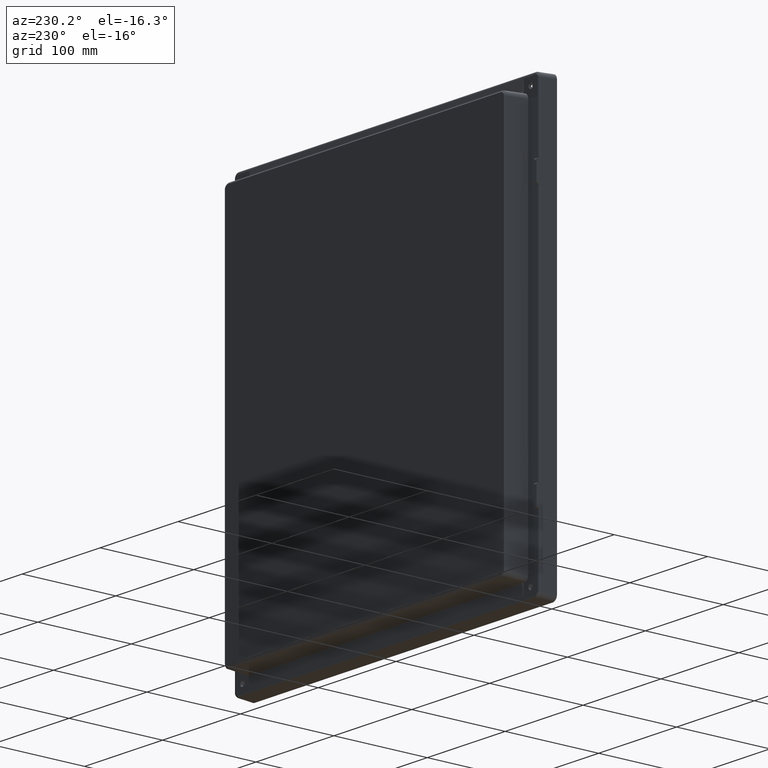
[diagram: clean part render]
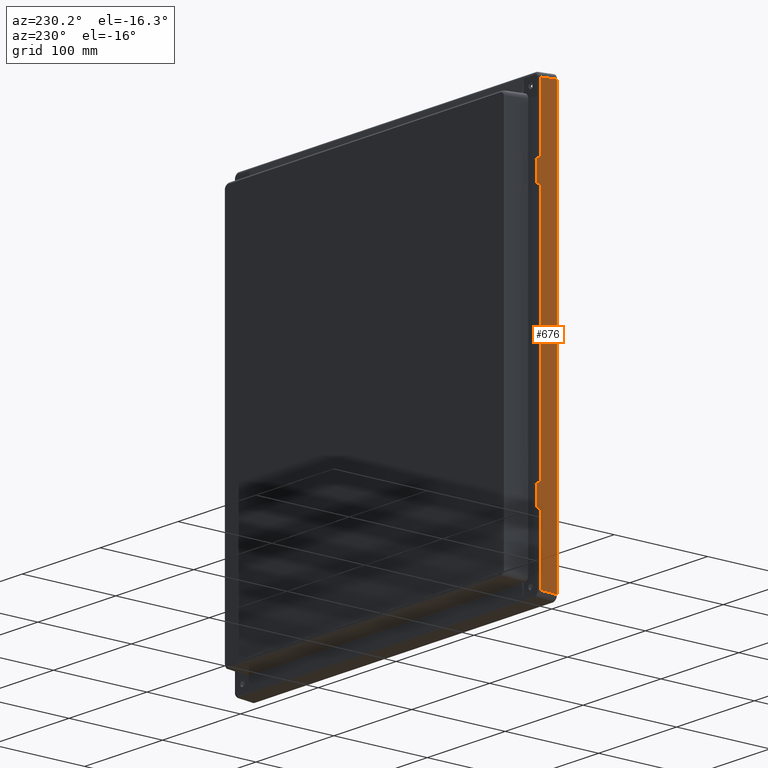
[diagram: same view with one face highlighted and labeled with its STEP entity id]
A machine part, auxiliary view. The second image highlights one B-rep face of the part: STEP entity #676.
In plain terms, the highlighted planar face has unit normal (-0.9986, 0.0523, 0).
Its self-contained STEP definition (entity closure, byte-faithful):
#283 = CARTESIAN_POINT ( 'NONE',  ( -195.9174660559426700, 11.11540981180252200, -150.1493299360794000 ) ) ;
#639 = EDGE_CURVE ( 'NONE', #6872, #7379, #3744, .T. ) ;
#676 = ADVANCED_FACE ( 'NONE', ( #17829 ), #10063, .T. ) ;
#683 = LINE ( 'NONE', #17141, #18834 ) ;
#807 =( BOUNDED_CURVE ( )  B_SPLINE_CURVE ( 3, ( #28261, #30621, #4347, #4646 ),
 .UNSPECIFIED., .F., .F. ) 
 B_SPLINE_CURVE_WITH_KNOTS ( ( 4, 4 ),
 ( 4.764748857944519900, 6.283185307179586200 ),
 .UNSPECIFIED. ) 
 CURVE ( )  GEOMETRIC_REPRESENTATION_ITEM ( )  RATIONAL_B_SPLINE_CURVE ( ( 1.000000000000000000, 0.8169162473415251300, 0.8169162473415251300, 1.000000000000000000 ) ) 
 REPRESENTATION_ITEM ( '' )  );
#1186 = DIRECTION ( 'NONE',  ( -0.0000000000000000000, 0.0000000000000000000, -1.000000000000000000 ) ) ;
#1437 = EDGE_LOOP ( 'NONE', ( #2750, #22761, #6478, #22521, #18314, #17589, #27611, #25877, #7066, #21985, #22751, #4631, #15331, #24811, #6509, #21023 ) ) ;
#1906 = CARTESIAN_POINT ( 'NONE',  ( -195.2816990115010500, 23.24656768834581300, -219.0392365703506200 ) ) ;
#2025 = CARTESIAN_POINT ( 'NONE',  ( -195.9174660559426700, 11.11540981180251800, 127.8506700639206500 ) ) ;
#2042 = VECTOR ( 'NONE', #7841, 1000.000000000000000 ) ;
#2063 = CARTESIAN_POINT ( 'NONE',  ( -196.0661132971653700, 8.279051483778985700, -219.7334597660193400 ) ) ;
#2067 = CARTESIAN_POINT ( 'NONE',  ( -195.8580950073978800, 12.24827690437989100, 150.0905304445846300 ) ) ;
#2377 = VECTOR ( 'NONE', #27037, 1000.000000000000000 ) ;
#2750 = ORIENTED_EDGE ( 'NONE', *, *, #639, .T. ) ;
#2805 = CARTESIAN_POINT ( 'NONE',  ( -195.8171705889751300, 13.02916132616916100, -129.8479291334297700 ) ) ;
#2952 = DIRECTION ( 'NONE',  ( 0.05226579549633288100, 0.9972907879583750000, -0.05176263975590004300 ) ) ;
#2980 = LINE ( 'NONE', #3151, #21855 ) ;
#3041 = VECTOR ( 'NONE', #16223, 1000.000000000000100 ) ;
#3151 = CARTESIAN_POINT ( 'NONE',  ( -196.0661132971653700, 8.279051483778985700, -219.7334597660193400 ) ) ;
#3572 = CARTESIAN_POINT ( 'NONE',  ( -196.0661132971653400, 8.279051483778983900, -219.8236508560148900 ) ) ;
#3744 = LINE ( 'NONE', #7093, #24884 ) ;
#4347 = CARTESIAN_POINT ( 'NONE',  ( -195.8171705889752700, 13.02916132616915800, -128.7244282801760800 ) ) ;
#4631 = ORIENTED_EDGE ( 'NONE', *, *, #16015, .T. ) ;
#4646 = CARTESIAN_POINT ( 'NONE',  ( -195.8171705889751300, 13.02916132616916100, -129.8479291334297700 ) ) ;
#4735 = CARTESIAN_POINT ( 'NONE',  ( -195.8171705889751300, 13.02916132616916100, -148.1520708665702600 ) ) ;
#4973 = EDGE_CURVE ( 'NONE', #25694, #16117, #22399, .T. ) ;
#5088 = VERTEX_POINT ( 'NONE', #19042 ) ;
#5093 = CARTESIAN_POINT ( 'NONE',  ( -196.5000000000001700, 0.0000000000000000000, 225.7499999999998900 ) ) ;
#6023 = CARTESIAN_POINT ( 'NONE',  ( -196.2335808065772400, 5.083581045937458000, 127.5375985072125800 ) ) ;
#6189 = VECTOR ( 'NONE', #25797, 1000.000000000000000 ) ;
#6284 = VERTEX_POINT ( 'NONE', #28810 ) ;
#6304 = EDGE_CURVE ( 'NONE', #24012, #29767, #683, .T. ) ;
#6478 = ORIENTED_EDGE ( 'NONE', *, *, #20505, .F. ) ;
#6490 = CARTESIAN_POINT ( 'NONE',  ( -195.8171705889751300, 13.02916132616916100, 129.8479291334297700 ) ) ;
#6509 = ORIENTED_EDGE ( 'NONE', *, *, #6304, .T. ) ;
#6803 = CARTESIAN_POINT ( 'NONE',  ( -195.8171705889752200, 13.02916132616916100, 128.7244282801760800 ) ) ;
#6872 = VERTEX_POINT ( 'NONE', #2805 ) ;
#7066 = ORIENTED_EDGE ( 'NONE', *, *, #13515, .T. ) ;
#7093 = CARTESIAN_POINT ( 'NONE',  ( -195.8171705889751300, 13.02916132616916100, -127.9500000000000000 ) ) ;
#7379 = VERTEX_POINT ( 'NONE', #4735 ) ;
#7841 = DIRECTION ( 'NONE',  ( -0.0000000000000000000, 0.0000000000000000000, -1.000000000000000000 ) ) ;
#8256 = CARTESIAN_POINT ( 'NONE',  ( -196.7029704034321200, -3.872906011448312000, 150.9272723395130500 ) ) ;
#8409 = AXIS2_PLACEMENT_3D ( 'NONE', #5093, #14633, #14538 ) ;
#8433 = CARTESIAN_POINT ( 'NONE',  ( -196.9192622342645200, -7.999999999999996400, -220.6767997931140400 ) ) ;
#9003 = CARTESIAN_POINT ( 'NONE',  ( -195.9174660559426700, 11.11540981180252400, -127.8506700639206200 ) ) ;
#9437 = EDGE_CURVE ( 'NONE', #20645, #14063, #16514, .T. ) ;
#9772 = EDGE_CURVE ( 'NONE', #27829, #16117, #24279, .T. ) ;
#9951 = EDGE_CURVE ( 'NONE', #7379, #18595, #23758, .T. ) ;
#10063 = PLANE ( 'NONE',  #8409 ) ;
#10237 = CARTESIAN_POINT ( 'NONE',  ( -195.8171705889751300, 13.02916132616916100, 127.9500000000000000 ) ) ;
#10511 = CARTESIAN_POINT ( 'NONE',  ( -195.8171705889752200, 13.02916132616915900, -149.2755717198239700 ) ) ;
#11636 = EDGE_CURVE ( 'NONE', #26276, #15305, #2980, .T. ) ;
#11967 = DIRECTION ( 'NONE',  ( 0.05226579549633288100, 0.9972907879583750000, 0.05176263975590004300 ) ) ;
#12483 = LINE ( 'NONE', #2063, #6189 ) ;
#12981 = CARTESIAN_POINT ( 'NONE',  ( -195.9174660559426700, 11.11540981180252200, 150.1493299360794000 ) ) ;
#12994 = VERTEX_POINT ( 'NONE', #8433 ) ;
#13142 = DIRECTION ( 'NONE',  ( 0.05226579549633288100, 0.9972907879583750000, -0.05176263975590004300 ) ) ;
#13414 = CARTESIAN_POINT ( 'NONE',  ( -195.9174660559426700, 11.11540981180252200, -150.1493299360794000 ) ) ;
#13515 = EDGE_CURVE ( 'NONE', #6284, #25694, #16284, .T. ) ;
#13676 = LINE ( 'NONE', #26857, #26629 ) ;
#13810 = CARTESIAN_POINT ( 'NONE',  ( -196.0661132971653700, 8.279051483778982100, 219.8236508560149200 ) ) ;
#13882 = CARTESIAN_POINT ( 'NONE',  ( -195.8171705889752200, 13.02916132616915900, 149.2755717198239700 ) ) ;
#14063 = VERTEX_POINT ( 'NONE', #2025 ) ;
#14343 = DIRECTION ( 'NONE',  ( -0.0000000000000000000, -0.0000000000000000000, -1.000000000000000000 ) ) ;
#14381 = CARTESIAN_POINT ( 'NONE',  ( -195.8580950073978800, 12.24827690437989100, -150.0905304445846300 ) ) ;
#14538 = DIRECTION ( 'NONE',  ( -0.05233595624294396000, -0.9986295347545739400, 0.0000000000000000000 ) ) ;
#14633 = DIRECTION ( 'NONE',  ( -0.9986295347545739400, 0.05233595624294396000, 0.0000000000000000000 ) ) ;
#15305 = VERTEX_POINT ( 'NONE', #3572 ) ;
#15331 = ORIENTED_EDGE ( 'NONE', *, *, #9437, .F. ) ;
#15704 = LINE ( 'NONE', #24652, #19758 ) ;
#16015 = EDGE_CURVE ( 'NONE', #27829, #14063, #22078, .T. ) ;
#16117 = VERTEX_POINT ( 'NONE', #19434 ) ;
#16159 = CARTESIAN_POINT ( 'NONE',  ( -195.8171705889751300, 13.02916132616916100, 129.8479291334297700 ) ) ;
#16223 = DIRECTION ( 'NONE',  ( -0.05226442768871403200, -0.9972646886342372300, -0.05226442768871403200 ) ) ;
#16264 = CARTESIAN_POINT ( 'NONE',  ( -195.9174660559426700, 11.11540981180251800, 127.8506700639206500 ) ) ;
#16284 = LINE ( 'NONE', #8256, #22174 ) ;
#16514 = LINE ( 'NONE', #6023, #26140 ) ;
#17141 = CARTESIAN_POINT ( 'NONE',  ( -195.8171705889751600, 13.02916132616916300, -127.9500000000000000 ) ) ;
#17589 = ORIENTED_EDGE ( 'NONE', *, *, #27687, .F. ) ;
#17829 = FACE_OUTER_BOUND ( 'NONE', #1437, .T. ) ;
#17830 = CARTESIAN_POINT ( 'NONE',  ( -196.0661132971653700, 8.279051483778985700, -150.2965461704263500 ) ) ;
#18314 = ORIENTED_EDGE ( 'NONE', *, *, #28393, .T. ) ;
#18548 = CARTESIAN_POINT ( 'NONE',  ( -195.8171705889751300, 13.02916132616916100, 148.1520708665702600 ) ) ;
#18595 = VERTEX_POINT ( 'NONE', #13414 ) ;
#18834 = VECTOR ( 'NONE', #2952, 1000.000000000000100 ) ;
#18950 = EDGE_CURVE ( 'NONE', #5088, #28375, #13676, .T. ) ;
#19042 = CARTESIAN_POINT ( 'NONE',  ( -196.9192622342645200, -7.999999999999996400, 220.6767997931140400 ) ) ;
#19434 = CARTESIAN_POINT ( 'NONE',  ( -195.8171705889751300, 13.02916132616916100, 148.1520708665702600 ) ) ;
#19628 = CARTESIAN_POINT ( 'NONE',  ( -196.0661132971653700, 8.279051483778985700, 127.7034538295736600 ) ) ;
#19758 = VECTOR ( 'NONE', #26597, 1000.000000000000000 ) ;
#20425 = DIRECTION ( 'NONE',  ( 0.05226579549633288100, 0.9972907879583750000, 0.05176263975590004300 ) ) ;
#20505 = EDGE_CURVE ( 'NONE', #26276, #18595, #24017, .T. ) ;
#20645 = VERTEX_POINT ( 'NONE', #19628 ) ;
#20786 = EDGE_CURVE ( 'NONE', #20645, #24012, #12483, .T. ) ;
#20800 = EDGE_CURVE ( 'NONE', #29767, #6872, #807, .T. ) ;
#20902 = CARTESIAN_POINT ( 'NONE',  ( -195.9174660559426700, 11.11540981180252200, 150.1493299360794000 ) ) ;
#21023 = ORIENTED_EDGE ( 'NONE', *, *, #20800, .T. ) ;
#21855 = VECTOR ( 'NONE', #1186, 1000.000000000000000 ) ;
#21893 = EDGE_CURVE ( 'NONE', #28375, #6284, #23192, .T. ) ;
#21985 = ORIENTED_EDGE ( 'NONE', *, *, #4973, .T. ) ;
#22078 =( BOUNDED_CURVE ( )  B_SPLINE_CURVE ( 3, ( #16159, #6803, #30696, #16264 ),
 .UNSPECIFIED., .F., .F. ) 
 B_SPLINE_CURVE_WITH_KNOTS ( ( 4, 4 ),
 ( 3.141592653589793100, 4.660029102824861300 ),
 .UNSPECIFIED. ) 
 CURVE ( )  GEOMETRIC_REPRESENTATION_ITEM ( )  RATIONAL_B_SPLINE_CURVE ( ( 1.000000000000000000, 0.8169162473415246800, 0.8169162473415246800, 1.000000000000000000 ) ) 
 REPRESENTATION_ITEM ( '' )  );
#22142 = VECTOR ( 'NONE', #11967, 1000.000000000000100 ) ;
#22174 = VECTOR ( 'NONE', #13142, 1000.000000000000100 ) ;
#22352 = CARTESIAN_POINT ( 'NONE',  ( -196.0661132971653700, 8.279051483778985700, -219.7334597660193400 ) ) ;
#22399 =( BOUNDED_CURVE ( )  B_SPLINE_CURVE ( 3, ( #20902, #2067, #13882, #18548 ),
 .UNSPECIFIED., .F., .F. ) 
 B_SPLINE_CURVE_WITH_KNOTS ( ( 4, 4 ),
 ( 1.623156204354726300, 3.141592653589793100 ),
 .UNSPECIFIED. ) 
 CURVE ( )  GEOMETRIC_REPRESENTATION_ITEM ( )  RATIONAL_B_SPLINE_CURVE ( ( 1.000000000000000000, 0.8169162473415250100, 0.8169162473415250100, 1.000000000000000000 ) ) 
 REPRESENTATION_ITEM ( '' )  );
#22521 = ORIENTED_EDGE ( 'NONE', *, *, #11636, .T. ) ;
#22751 = ORIENTED_EDGE ( 'NONE', *, *, #9772, .F. ) ;
#22761 = ORIENTED_EDGE ( 'NONE', *, *, #9951, .T. ) ;
#22961 = CARTESIAN_POINT ( 'NONE',  ( -195.8171705889751300, 13.02916132616916100, -148.1520708665702600 ) ) ;
#23192 = LINE ( 'NONE', #22352, #2042 ) ;
#23758 =( BOUNDED_CURVE ( )  B_SPLINE_CURVE ( 3, ( #22961, #10511, #14381, #283 ),
 .UNSPECIFIED., .F., .F. ) 
 B_SPLINE_CURVE_WITH_KNOTS ( ( 4, 4 ),
 ( 0.0000000000000000000, 1.518436449235066800 ),
 .UNSPECIFIED. ) 
 CURVE ( )  GEOMETRIC_REPRESENTATION_ITEM ( )  RATIONAL_B_SPLINE_CURVE ( ( 1.000000000000000000, 0.8169162473415250100, 0.8169162473415250100, 1.000000000000000000 ) ) 
 REPRESENTATION_ITEM ( '' )  );
#24012 = VERTEX_POINT ( 'NONE', #26755 ) ;
#24017 = LINE ( 'NONE', #26562, #22142 ) ;
#24279 = LINE ( 'NONE', #10237, #2377 ) ;
#24287 = DIRECTION ( 'NONE',  ( 0.05226442768871403200, 0.9972646886342372300, -0.05226442768871403200 ) ) ;
#24652 = CARTESIAN_POINT ( 'NONE',  ( -196.9192622342645200, -7.999999999999996400, 225.7499999999998900 ) ) ;
#24811 = ORIENTED_EDGE ( 'NONE', *, *, #20786, .T. ) ;
#24884 = VECTOR ( 'NONE', #14343, 1000.000000000000000 ) ;
#25694 = VERTEX_POINT ( 'NONE', #12981 ) ;
#25797 = DIRECTION ( 'NONE',  ( -0.0000000000000000000, 0.0000000000000000000, -1.000000000000000000 ) ) ;
#25877 = ORIENTED_EDGE ( 'NONE', *, *, #21893, .T. ) ;
#26140 = VECTOR ( 'NONE', #20425, 1000.000000000000100 ) ;
#26276 = VERTEX_POINT ( 'NONE', #17830 ) ;
#26562 = CARTESIAN_POINT ( 'NONE',  ( -195.8171705889751600, 13.02916132616916300, -150.0500000000000100 ) ) ;
#26597 = DIRECTION ( 'NONE',  ( -0.0000000000000000000, -0.0000000000000000000, -1.000000000000000000 ) ) ;
#26629 = VECTOR ( 'NONE', #24287, 1000.000000000000100 ) ;
#26755 = CARTESIAN_POINT ( 'NONE',  ( -196.0661132971653700, 8.279051483778985700, -127.7034538295736600 ) ) ;
#26857 = CARTESIAN_POINT ( 'NONE',  ( -196.5150030478364700, -0.2862752064970360800, 220.2725406066860500 ) ) ;
#27037 = DIRECTION ( 'NONE',  ( -0.0000000000000000000, -0.0000000000000000000, 1.000000000000000000 ) ) ;
#27611 = ORIENTED_EDGE ( 'NONE', *, *, #18950, .T. ) ;
#27687 = EDGE_CURVE ( 'NONE', #5088, #12994, #15704, .T. ) ;
#27829 = VERTEX_POINT ( 'NONE', #6490 ) ;
#28261 = CARTESIAN_POINT ( 'NONE',  ( -195.9174660559426700, 11.11540981180252400, -127.8506700639206200 ) ) ;
#28375 = VERTEX_POINT ( 'NONE', #13810 ) ;
#28393 = EDGE_CURVE ( 'NONE', #15305, #12994, #29704, .T. ) ;
#28810 = CARTESIAN_POINT ( 'NONE',  ( -196.0661132971653700, 8.279051483778985700, 150.2965461704263800 ) ) ;
#29704 = LINE ( 'NONE', #1906, #3041 ) ;
#29767 = VERTEX_POINT ( 'NONE', #9003 ) ;
#30621 = CARTESIAN_POINT ( 'NONE',  ( -195.8580950073978500, 12.24827690437989100, -127.9094695554154100 ) ) ;
#30696 = CARTESIAN_POINT ( 'NONE',  ( -195.8580950073979400, 12.24827690437989200, 127.9094695554154100 ) ) ;